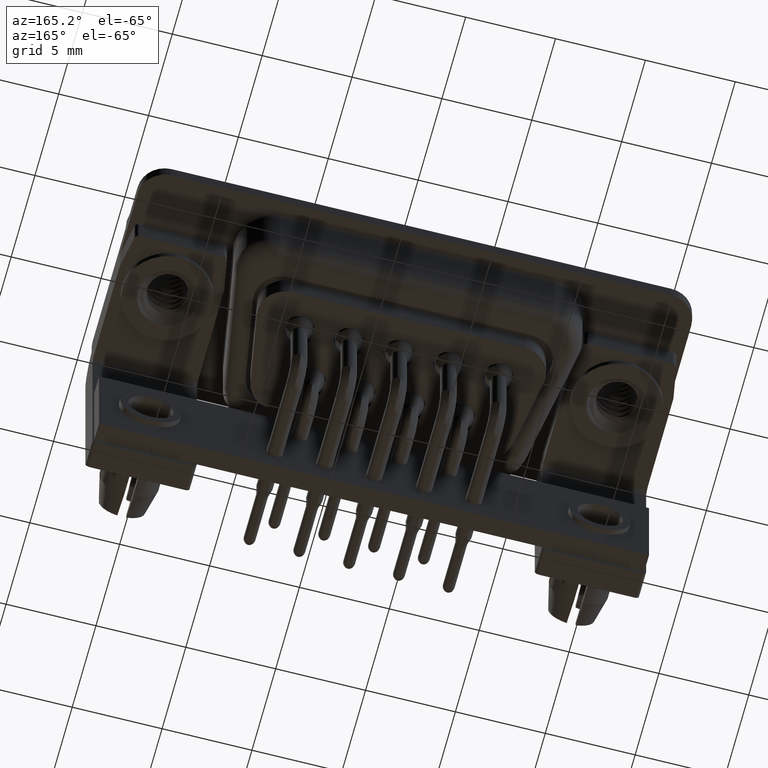
[diagram: clean part render]
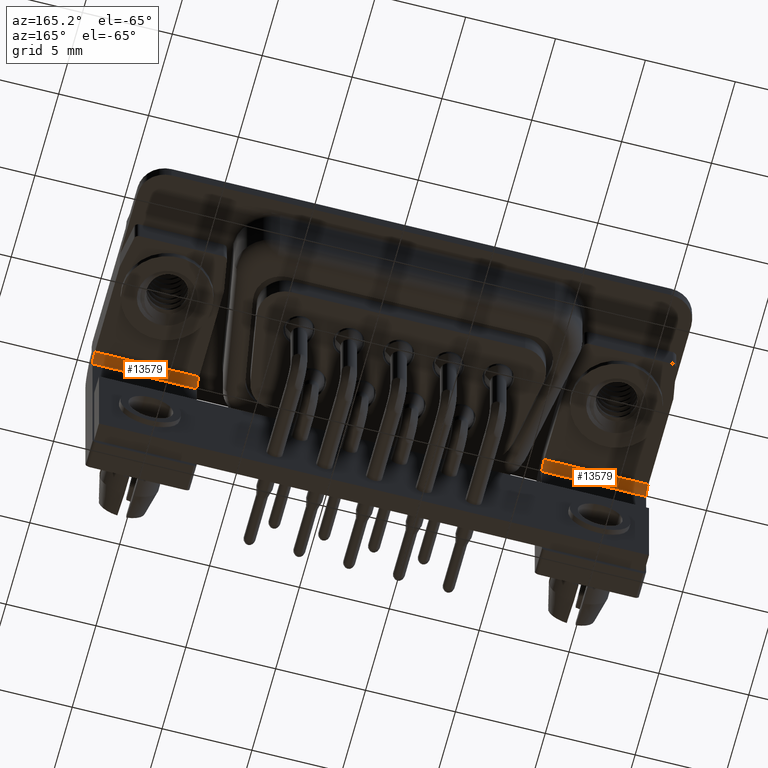
[diagram: same view with one multi-face feature highlighted, each face labeled with its STEP entity id]
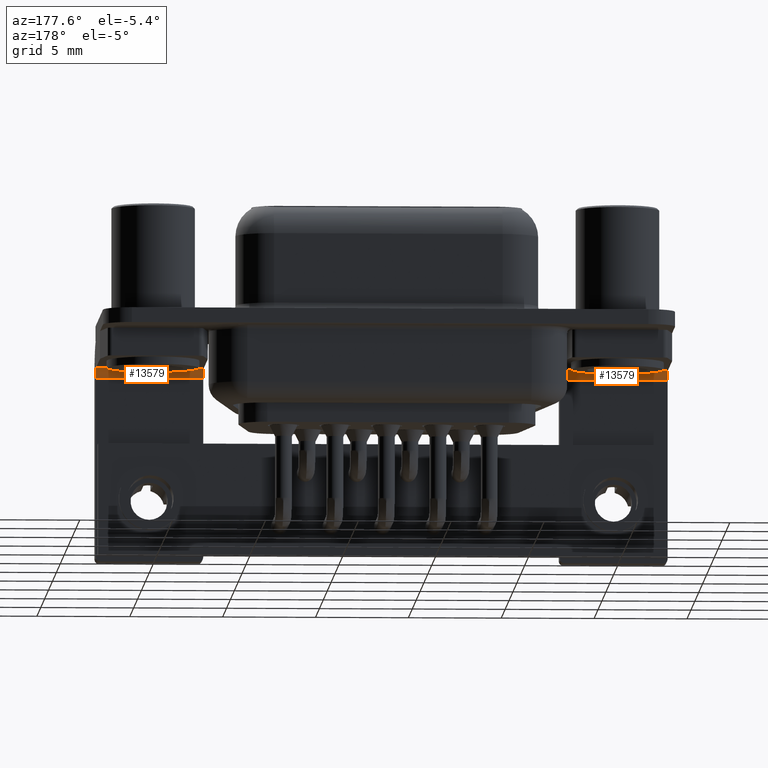
[diagram: same view with one multi-face feature highlighted, each face labeled with its STEP entity id]
A machine part, auxiliary view. The highlighted faces form ONE feature: a constant-radius fillet chain: 2 tangent blend faces with common blend radius 0.5 mm. The faces share edges in the B-rep.
A second angle (auxiliary view) of the same feature is appended — it is thin or edge-on in the first view.
Their STEP definitions:
[1] entity #13579 (Cylinder):
#267 = CARTESIAN_POINT ( 'NONE',  ( 2.899999999999999900, -4.749999999999999100, -2.400000000000001200 ) ) ;
#1235 = CARTESIAN_POINT ( 'NONE',  ( 2.899999999999999900, -4.249999999999999100, -1.900000000000001000 ) ) ;
#1887 = VECTOR ( 'NONE', #19970, 1000.000000000000000 ) ;
#2010 = ORIENTED_EDGE ( 'NONE', *, *, #5910, .F. ) ;
#2462 = CARTESIAN_POINT ( 'NONE',  ( 2.899999999999999900, -4.249999999999999100, -1.900000000000001000 ) ) ;
#2914 = EDGE_CURVE ( 'NONE', #6855, #3796, #6044, .T. ) ;
#3796 = VERTEX_POINT ( 'NONE', #3925 ) ;
#3925 = CARTESIAN_POINT ( 'NONE',  ( -2.899999999999999900, -4.749999999999999100, -2.400000000000001200 ) ) ;
#4060 = VECTOR ( 'NONE', #17574, 1000.000000000000000 ) ;
#4211 = EDGE_CURVE ( 'NONE', #14976, #15207, #8207, .T. ) ;
#4898 = DIRECTION ( 'NONE',  ( -1.000000000000000000, -0.0000000000000000000, -0.0000000000000000000 ) ) ;
#5852 = DIRECTION ( 'NONE',  ( -1.000000000000000000, -0.0000000000000000000, 0.0000000000000000000 ) ) ;
#5910 = EDGE_CURVE ( 'NONE', #6855, #14976, #15991, .T. ) ;
#6044 = LINE ( 'NONE', #18787, #1887 ) ;
#6833 = CARTESIAN_POINT ( 'NONE',  ( 2.899999999999999900, -4.249999999999999100, -2.400000000000001200 ) ) ;
#6855 = VERTEX_POINT ( 'NONE', #267 ) ;
#7720 = AXIS2_PLACEMENT_3D ( 'NONE', #15230, #5852, #16767 ) ;
#7972 = AXIS2_PLACEMENT_3D ( 'NONE', #6833, #17748, #8399 ) ;
#8207 = LINE ( 'NONE', #2462, #4060 ) ;
#8399 = DIRECTION ( 'NONE',  ( 0.0000000000000000000, 0.0000000000000000000, 1.000000000000000000 ) ) ;
#9536 = DIRECTION ( 'NONE',  ( 0.0000000000000000000, 0.0000000000000000000, 1.000000000000000000 ) ) ;
#9904 = ORIENTED_EDGE ( 'NONE', *, *, #16522, .T. ) ;
#10172 = AXIS2_PLACEMENT_3D ( 'NONE', #14260, #4898, #9536 ) ;
#11215 = CARTESIAN_POINT ( 'NONE',  ( -2.899999999999999900, -4.249999999999999100, -1.900000000000001000 ) ) ;
#12962 = FACE_OUTER_BOUND ( 'NONE', #17409, .T. ) ;
#13579 = ADVANCED_FACE ( 'NONE', ( #12962 ), #20300, .F. ) ;
#14260 = CARTESIAN_POINT ( 'NONE',  ( 2.899999999999999900, -4.249999999999999100, -2.400000000000001200 ) ) ;
#14976 = VERTEX_POINT ( 'NONE', #1235 ) ;
#15207 = VERTEX_POINT ( 'NONE', #11215 ) ;
#15230 = CARTESIAN_POINT ( 'NONE',  ( -2.899999999999999900, -4.249999999999999100, -2.400000000000001200 ) ) ;
#15413 = ORIENTED_EDGE ( 'NONE', *, *, #4211, .F. ) ;
#15991 = CIRCLE ( 'NONE', #7972, 0.5000000000000000000 ) ;
#16522 = EDGE_CURVE ( 'NONE', #3796, #15207, #18438, .T. ) ;
#16767 = DIRECTION ( 'NONE',  ( 0.0000000000000000000, 0.0000000000000000000, 1.000000000000000000 ) ) ;
#17409 = EDGE_LOOP ( 'NONE', ( #9904, #15413, #2010, #19810 ) ) ;
#17574 = DIRECTION ( 'NONE',  ( -1.000000000000000000, -0.0000000000000000000, -0.0000000000000000000 ) ) ;
#17748 = DIRECTION ( 'NONE',  ( -1.000000000000000000, -0.0000000000000000000, 0.0000000000000000000 ) ) ;
#18438 = CIRCLE ( 'NONE', #7720, 0.5000000000000000000 ) ;
#18787 = CARTESIAN_POINT ( 'NONE',  ( 2.899999999999999900, -4.749999999999999100, -2.400000000000001200 ) ) ;
#19810 = ORIENTED_EDGE ( 'NONE', *, *, #2914, .T. ) ;
#19970 = DIRECTION ( 'NONE',  ( -1.000000000000000000, -0.0000000000000000000, -0.0000000000000000000 ) ) ;
#20300 = CYLINDRICAL_SURFACE ( 'NONE', #10172, 0.5000000000000000000 ) ;
[2] entity #13579 (Cylinder):
#267 = CARTESIAN_POINT ( 'NONE',  ( 2.899999999999999900, -4.749999999999999100, -2.400000000000001200 ) ) ;
#1235 = CARTESIAN_POINT ( 'NONE',  ( 2.899999999999999900, -4.249999999999999100, -1.900000000000001000 ) ) ;
#1887 = VECTOR ( 'NONE', #19970, 1000.000000000000000 ) ;
#2010 = ORIENTED_EDGE ( 'NONE', *, *, #5910, .F. ) ;
#2462 = CARTESIAN_POINT ( 'NONE',  ( 2.899999999999999900, -4.249999999999999100, -1.900000000000001000 ) ) ;
#2914 = EDGE_CURVE ( 'NONE', #6855, #3796, #6044, .T. ) ;
#3796 = VERTEX_POINT ( 'NONE', #3925 ) ;
#3925 = CARTESIAN_POINT ( 'NONE',  ( -2.899999999999999900, -4.749999999999999100, -2.400000000000001200 ) ) ;
#4060 = VECTOR ( 'NONE', #17574, 1000.000000000000000 ) ;
#4211 = EDGE_CURVE ( 'NONE', #14976, #15207, #8207, .T. ) ;
#4898 = DIRECTION ( 'NONE',  ( -1.000000000000000000, -0.0000000000000000000, -0.0000000000000000000 ) ) ;
#5852 = DIRECTION ( 'NONE',  ( -1.000000000000000000, -0.0000000000000000000, 0.0000000000000000000 ) ) ;
#5910 = EDGE_CURVE ( 'NONE', #6855, #14976, #15991, .T. ) ;
#6044 = LINE ( 'NONE', #18787, #1887 ) ;
#6833 = CARTESIAN_POINT ( 'NONE',  ( 2.899999999999999900, -4.249999999999999100, -2.400000000000001200 ) ) ;
#6855 = VERTEX_POINT ( 'NONE', #267 ) ;
#7720 = AXIS2_PLACEMENT_3D ( 'NONE', #15230, #5852, #16767 ) ;
#7972 = AXIS2_PLACEMENT_3D ( 'NONE', #6833, #17748, #8399 ) ;
#8207 = LINE ( 'NONE', #2462, #4060 ) ;
#8399 = DIRECTION ( 'NONE',  ( 0.0000000000000000000, 0.0000000000000000000, 1.000000000000000000 ) ) ;
#9536 = DIRECTION ( 'NONE',  ( 0.0000000000000000000, 0.0000000000000000000, 1.000000000000000000 ) ) ;
#9904 = ORIENTED_EDGE ( 'NONE', *, *, #16522, .T. ) ;
#10172 = AXIS2_PLACEMENT_3D ( 'NONE', #14260, #4898, #9536 ) ;
#11215 = CARTESIAN_POINT ( 'NONE',  ( -2.899999999999999900, -4.249999999999999100, -1.900000000000001000 ) ) ;
#12962 = FACE_OUTER_BOUND ( 'NONE', #17409, .T. ) ;
#13579 = ADVANCED_FACE ( 'NONE', ( #12962 ), #20300, .F. ) ;
#14260 = CARTESIAN_POINT ( 'NONE',  ( 2.899999999999999900, -4.249999999999999100, -2.400000000000001200 ) ) ;
#14976 = VERTEX_POINT ( 'NONE', #1235 ) ;
#15207 = VERTEX_POINT ( 'NONE', #11215 ) ;
#15230 = CARTESIAN_POINT ( 'NONE',  ( -2.899999999999999900, -4.249999999999999100, -2.400000000000001200 ) ) ;
#15413 = ORIENTED_EDGE ( 'NONE', *, *, #4211, .F. ) ;
#15991 = CIRCLE ( 'NONE', #7972, 0.5000000000000000000 ) ;
#16522 = EDGE_CURVE ( 'NONE', #3796, #15207, #18438, .T. ) ;
#16767 = DIRECTION ( 'NONE',  ( 0.0000000000000000000, 0.0000000000000000000, 1.000000000000000000 ) ) ;
#17409 = EDGE_LOOP ( 'NONE', ( #9904, #15413, #2010, #19810 ) ) ;
#17574 = DIRECTION ( 'NONE',  ( -1.000000000000000000, -0.0000000000000000000, -0.0000000000000000000 ) ) ;
#17748 = DIRECTION ( 'NONE',  ( -1.000000000000000000, -0.0000000000000000000, 0.0000000000000000000 ) ) ;
#18438 = CIRCLE ( 'NONE', #7720, 0.5000000000000000000 ) ;
#18787 = CARTESIAN_POINT ( 'NONE',  ( 2.899999999999999900, -4.749999999999999100, -2.400000000000001200 ) ) ;
#19810 = ORIENTED_EDGE ( 'NONE', *, *, #2914, .T. ) ;
#19970 = DIRECTION ( 'NONE',  ( -1.000000000000000000, -0.0000000000000000000, -0.0000000000000000000 ) ) ;
#20300 = CYLINDRICAL_SURFACE ( 'NONE', #10172, 0.5000000000000000000 ) ;